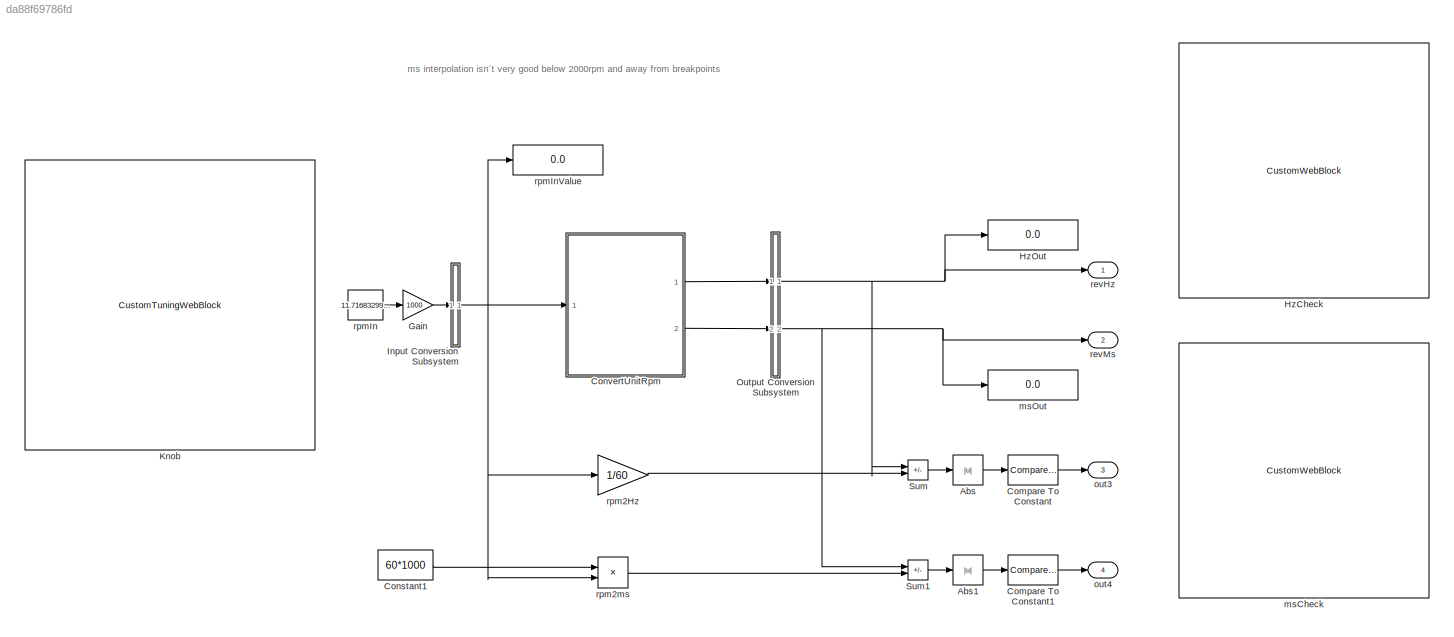
MODEL slx_da88f69786fd
KIND model
CONFIG AbsTol = auto
CONFIG EnableMultiTasking = off
CONFIG FixedStep = 0.2
CONFIG MaxStep = auto
CONFIG MinStep = auto
CONFIG RelTol = 1e-3
CONFIG SampleTimeConstraint = Unconstrained
CONFIG SolverName = FixedStepAuto
CONFIG StartTime = 0.0
CONFIG StopTime = inf
BLOCK [Abs] Abs
  SaturateOnIntegerOverflow = off
BLOCK [Abs] Abs1
  SaturateOnIntegerOverflow = off
BLOCK [Reference] Compare To Constant  REF=simulink/Logic and Bit
Operations/Compare
To Constant
  Ports = [1, 1]
  SourceBlock = simulink/Logic and Bit\nOperations/Compare\nTo Constant
  SourceProductBaseCode = SL
  SourceType = Compare To Constant
BLOCK [Reference] Compare To Constant1  REF=simulink/Logic and Bit
Operations/Compare
To Constant
  Ports = [1, 1]
  SourceBlock = simulink/Logic and Bit\nOperations/Compare\nTo Constant
  SourceProductBaseCode = SL
  SourceType = Compare To Constant
BLOCK [Constant] Constant1
  Value = 60*1000
BLOCK [ModelReference] ConvertUnitRpm
  ModelNameDialog = ConvertUnitRpm
  ModelReferenceVersion = 1.12
  Ports = [1, 2]
BLOCK [Gain] Gain
  Gain = 1000
BLOCK [CustomWebBlock] HzCheck
  Configuration = {"components":[{"name":"BackgroundImageComponent","settings":{"image":{"size":[150,150],"src":"data:image\/svg+xml;base64,PHN2ZyB4bWxucz0iaHR0cDovL3d3dy53My5vcmcvMjAwMC9zdmciIHhtbG5zOnhsaW5rPSJodHRwOi8vd3d3LnczLm9yZy8xOTk5L3hsaW5rIiB2aWV3Qm94PSIwIDAgNTAwIDUwMCI+PGRlZnM+PHN0eWxlPi5he2ZpbGw6dXJsKCNhKTt9LmJ7ZmlsbDp1cmwoI2IpO30uY3tmaWxsOnVybCgjYyk7fTwvc3R5bGU+PHJhZGlhbEdyYWRpZW50IGlkPSJhIiBjeD0iMjgzLj...<+9460ch>
  LabelPosition = Hide
  ShowInitialText = on
BLOCK [Display] HzOut
  Decimation = 1
  Ports = [1]
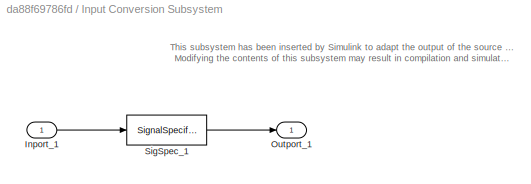
BLOCK [SubSystem] Input Conversion Subsystem
  AttributesFormatString = %<Description>
  Description = Signal spec.\nand routing
  Permissions = ReadOnly
  PermitHierarchicalResolution = ExplicitOnly
  Ports = [1, 1]
  RequestExecContextInheritance = off
  Tag = __SLT_ICS__
  TreatAsGroupedWhenPropagatingVariantConditions = off
  UserDataPersistent = on
BLOCK [Inport] Input Conversion Subsystem/Inport_1
BLOCK [Outport] Input Conversion Subsystem/Outport_1
BLOCK [SignalSpecification] Input Conversion Subsystem/SigSpec_1
  Dimensions = [1]
  OutDataTypeStr = double
  SampleTime = 0.2
  SignalType = real
  Unit = rpm
  VarSizeSig = No
BLOCK [CustomTuningWebBlock] Knob
  Configuration = {"components":[{"name":"CircularScaleComponent","settings":{"bounds":{"max":12.5,"min":0.5,"tickInterval":0.5},"direction":"cw","flipLimits":0,"innerRadius":0.6636618227670849,"internalTickHeightScaleFactor":1,"labelColor":[255,255,200],"labelFont":{"font":"Arial","fontSize":12},"labelTransparency":1,"minorTickHeightScaleFactor":0.2,"needleImage":{"size":[150,150],"src":"data:image\/svg+xml;base64...<+43605ch>
  LabelPosition = Hide
  ShowInitialText = on
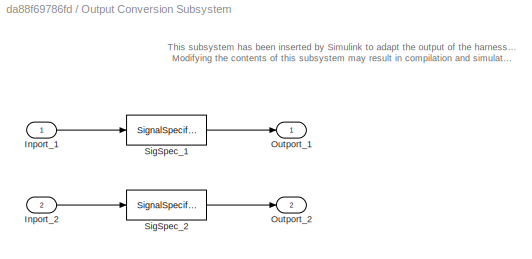
BLOCK [SubSystem] Output Conversion Subsystem
  AttributesFormatString = %<Description>
  Description = Signal spec.\nand routing
  Permissions = ReadOnly
  PermitHierarchicalResolution = ExplicitOnly
  Ports = [2, 2]
  RequestExecContextInheritance = off
  Tag = __SLT_OCS__
  TreatAsGroupedWhenPropagatingVariantConditions = off
  UserDataPersistent = on
BLOCK [Inport] Output Conversion Subsystem/Inport_1
BLOCK [Inport] Output Conversion Subsystem/Inport_2
  Port = 2
BLOCK [Outport] Output Conversion Subsystem/Outport_1
BLOCK [Outport] Output Conversion Subsystem/Outport_2
  Port = 2
BLOCK [SignalSpecification] Output Conversion Subsystem/SigSpec_1
  Dimensions = [1]
  OutDataTypeStr = double
  SampleTime = 0.2
  SignalType = real
  Unit = Hz
  VarSizeSig = No
BLOCK [SignalSpecification] Output Conversion Subsystem/SigSpec_2
  Dimensions = [1]
  OutDataTypeStr = double
  SampleTime = 0.2
  SignalType = real
  Unit = msec
  VarSizeSig = No
BLOCK [Sum] Sum
  IconShape = rectangular
  Inputs = +-
  Ports = [2, 1]
BLOCK [Sum] Sum1
  IconShape = rectangular
  Inputs = +-
  Ports = [2, 1]
BLOCK [CustomWebBlock] msCheck
  Configuration = {"components":[{"name":"BackgroundImageComponent","settings":{"image":{"size":[150,150],"src":"data:image\/svg+xml;base64,PHN2ZyB4bWxucz0iaHR0cDovL3d3dy53My5vcmcvMjAwMC9zdmciIHhtbG5zOnhsaW5rPSJodHRwOi8vd3d3LnczLm9yZy8xOTk5L3hsaW5rIiB2aWV3Qm94PSIwIDAgNTAwIDUwMCI+PGRlZnM+PHN0eWxlPi5he2ZpbGw6dXJsKCNhKTt9LmJ7ZmlsbDp1cmwoI2IpO30uY3tmaWxsOnVybCgjYyk7fTwvc3R5bGU+PHJhZGlhbEdyYWRpZW50IGlkPSJhIiBjeD0iMjgzLj...<+9460ch>
  LabelPosition = Hide
  ShowInitialText = on
BLOCK [Display] msOut
  Decimation = 1
  Ports = [1]
BLOCK [Outport] out3
  Port = 3
BLOCK [Outport] out4
  Port = 4
BLOCK [Outport] revHz
BLOCK [Outport] revMs
  Port = 2
BLOCK [Gain] rpm2Hz
  Gain = 1/60
BLOCK [Product] rpm2ms
  Inputs = */
  Ports = [2, 1]
BLOCK [Constant] rpmIn
  Value = 11.71683299672794
BLOCK [Display] rpmInValue
  Decimation = 1
  Ports = [1]
ANNOTATION (root): ms interpolation isn´t very good below 2000rpm and away from breakpoints
ANNOTATION Input Conversion Subsystem: This subsystem has been inserted by Simulink to adapt the output of the source blocks to the interface required by the harnessed component. Modifying the contents of this subsystem may result in compilation and simulation failure.
ANNOTATION Output Conversion Subsystem: This subsystem has been inserted by Simulink to adapt the output of the harnessed component to the interface required by the sink blocks. Modifying the contents of this subsystem may result in compilation and simulation failure.
LINE Abs1:1 -> Compare To Constant1:1
LINE Abs:1 -> Compare To Constant:1
LINE Compare To Constant1:1 -> out4:1
LINE Compare To Constant:1 -> out3:1
LINE Constant1:1 -> rpm2ms:1
LINE ConvertUnitRpm:1 -> Output Conversion Subsystem:1
LINE ConvertUnitRpm:2 -> Output Conversion Subsystem:2
LINE Gain:1 -> Input Conversion Subsystem:1
LINE Input Conversion Subsystem/Inport_1:1 -> Input Conversion Subsystem/SigSpec_1:1
LINE Input Conversion Subsystem/SigSpec_1:1 -> Input Conversion Subsystem/Outport_1:1
NET Input Conversion Subsystem:1 -> ConvertUnitRpm:1, rpm2Hz:1, rpm2ms:2, rpmInValue:1
LINE Output Conversion Subsystem/Inport_1:1 -> Output Conversion Subsystem/SigSpec_1:1
LINE Output Conversion Subsystem/Inport_2:1 -> Output Conversion Subsystem/SigSpec_2:1
LINE Output Conversion Subsystem/SigSpec_1:1 -> Output Conversion Subsystem/Outport_1:1
LINE Output Conversion Subsystem/SigSpec_2:1 -> Output Conversion Subsystem/Outport_2:1
NET Output Conversion Subsystem:1 -> HzOut:1, Sum:1, revHz:1
NET Output Conversion Subsystem:2 -> Sum1:1, msOut:1, revMs:1
LINE Sum1:1 -> Abs1:1
LINE Sum:1 -> Abs:1
LINE rpm2Hz:1 -> Sum:2
LINE rpm2ms:1 -> Sum1:2
LINE rpmIn:1 -> Gain:1
note: NET lines group one-source signal fan-out (src -> all destinations, sorted); 1:1 wires keep LINE
